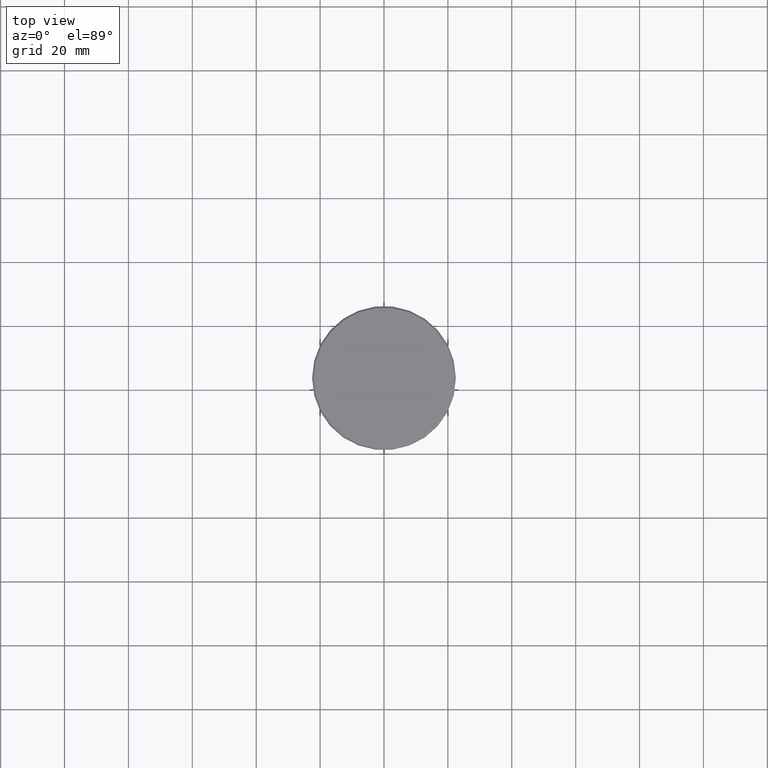
[diagram: clean part render]
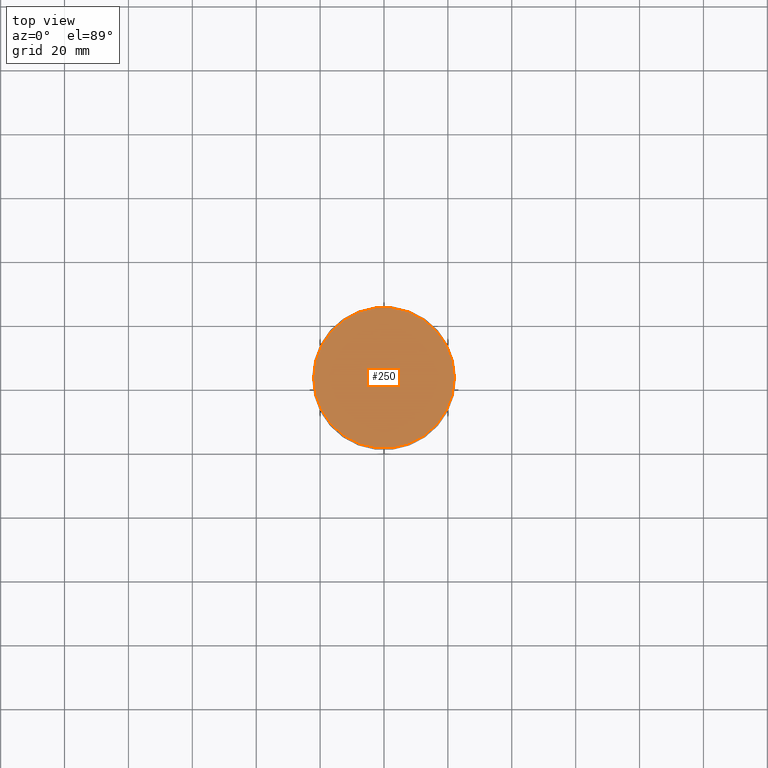
[diagram: same view with one face highlighted and labeled with its STEP entity id]
A machine part, top view. The second image highlights one B-rep face of the part: STEP entity #250.
In plain terms, the highlighted planar face has unit normal (0, -0, 1).
Its self-contained STEP definition (entity closure, byte-faithful):
#16 = DIRECTION ( 'NONE',  ( -0.000000000000000000, -0.000000000000000000, 1.000000000000000000 ) ) ;
#33 = CARTESIAN_POINT ( 'NONE',  ( 21.99999999999996447, 2.724839128102858624E-15, 0.000000000000000000 ) ) ;
#176 = CIRCLE ( 'NONE', #532, 21.99999999999996447 ) ;
#190 = CARTESIAN_POINT ( 'NONE',  ( 0.000000000000000000, 0.000000000000000000, 0.000000000000000000 ) ) ;
#216 = VERTEX_POINT ( 'NONE', #670 ) ;
#220 = CIRCLE ( 'NONE', #418, 21.99999999999996447 ) ;
#250 = ADVANCED_FACE ( 'NONE', ( #801 ), #1162, .T. ) ;
#295 = DIRECTION ( 'NONE',  ( -0.000000000000000000, -0.000000000000000000, 1.000000000000000000 ) ) ;
#418 = AXIS2_PLACEMENT_3D ( 'NONE', #1098, #16, #915 ) ;
#466 = EDGE_CURVE ( 'NONE', #216, #901, #220, .T. ) ;
#532 = AXIS2_PLACEMENT_3D ( 'NONE', #190, #295, #568 ) ;
#539 = EDGE_LOOP ( 'NONE', ( #1100, #635 ) ) ;
#568 = DIRECTION ( 'NONE',  ( 1.000000000000000000, 0.000000000000000000, 0.000000000000000000 ) ) ;
#635 = ORIENTED_EDGE ( 'NONE', *, *, #926, .T. ) ;
#670 = CARTESIAN_POINT ( 'NONE',  ( -21.99999999999996447, 0.000000000000000000, 0.000000000000000000 ) ) ;
#717 = DIRECTION ( 'NONE',  ( 1.000000000000000000, 0.000000000000000000, 0.000000000000000000 ) ) ;
#721 = CARTESIAN_POINT ( 'NONE',  ( 0.000000000000000000, 0.000000000000000000, 0.000000000000000000 ) ) ;
#801 = FACE_OUTER_BOUND ( 'NONE', #539, .T. ) ;
#846 = AXIS2_PLACEMENT_3D ( 'NONE', #721, #1157, #717 ) ;
#901 = VERTEX_POINT ( 'NONE', #33 ) ;
#915 = DIRECTION ( 'NONE',  ( 1.000000000000000000, 0.000000000000000000, 0.000000000000000000 ) ) ;
#926 = EDGE_CURVE ( 'NONE', #901, #216, #176, .T. ) ;
#1098 = CARTESIAN_POINT ( 'NONE',  ( 0.000000000000000000, 0.000000000000000000, 0.000000000000000000 ) ) ;
#1100 = ORIENTED_EDGE ( 'NONE', *, *, #466, .T. ) ;
#1157 = DIRECTION ( 'NONE',  ( 0.000000000000000000, -0.000000000000000000, 1.000000000000000000 ) ) ;
#1162 = PLANE ( 'NONE',  #846 ) ;